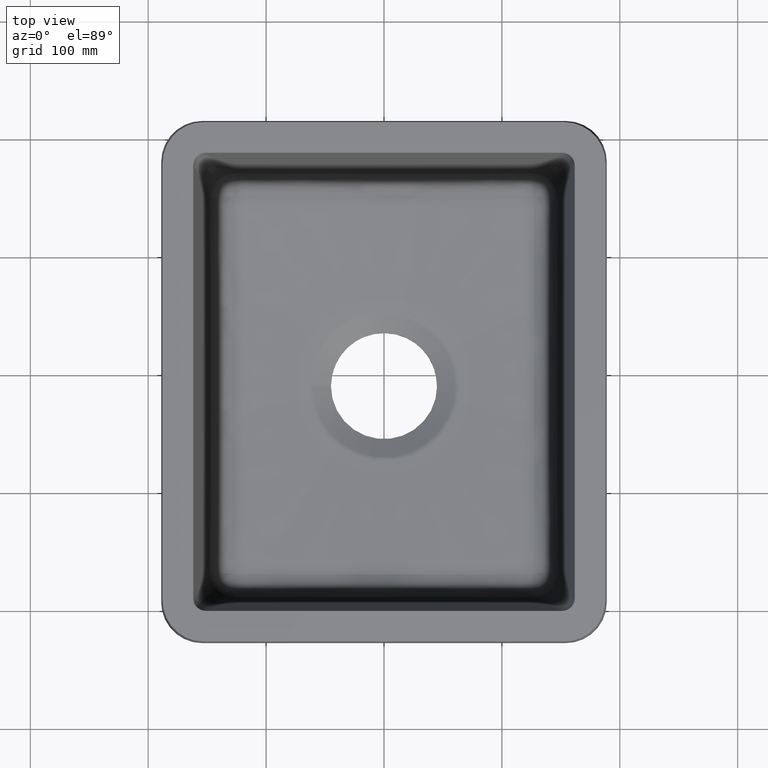
[diagram: clean part render]
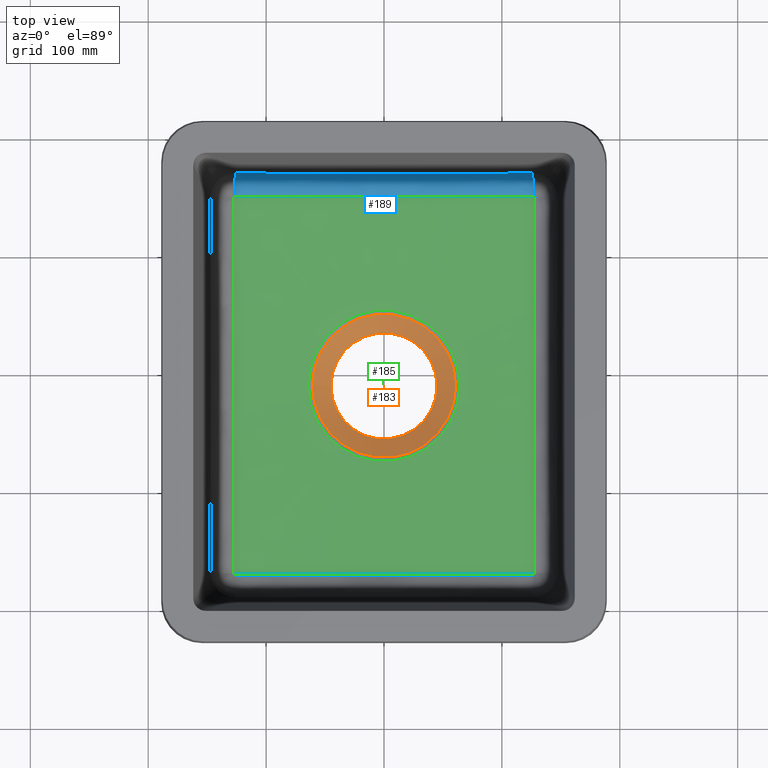
[diagram: same view with three faces highlighted in distinct colors, each labeled with its STEP entity id]
A machine part, top view with three faces highlighted in distinct colors.
Their STEP definitions:

[orange] entity #183 — the highlighted conical surface has half-angle 60 deg.
#114=CONICAL_SURFACE('',#1352,45.,59.9999999999999);
#162=FACE_BOUND('',#394,.T.);
#163=FACE_BOUND('',#395,.T.);
#183=ADVANCED_FACE('',(#162,#163),#114,.F.);
#394=EDGE_LOOP('',(#563));
#395=EDGE_LOOP('',(#564));
#479=CIRCLE('',#1349,45.);
#480=CIRCLE('',#1351,60.7210063281648);
#563=ORIENTED_EDGE('',*,*,#1069,.F.);
#564=ORIENTED_EDGE('',*,*,#1068,.T.);
#937=VERTEX_POINT('',#2092);
#938=VERTEX_POINT('',#2095);
#1068=EDGE_CURVE('',#937,#937,#479,.T.);
#1069=EDGE_CURVE('',#938,#938,#480,.T.);
#1349=AXIS2_PLACEMENT_3D('',#2091,#1430,#1431);
#1351=AXIS2_PLACEMENT_3D('',#2094,#1434,#1435);
#1352=AXIS2_PLACEMENT_3D('',#2096,#1436,#1437);
#1430=DIRECTION('',(0.,0.,-1.));
#1431=DIRECTION('',(1.,0.,0.));
#1434=DIRECTION('',(0.,0.,-1.));
#1435=DIRECTION('',(-1.,0.,0.));
#1436=DIRECTION('',(0.,0.,1.));
#1437=DIRECTION('',(-1.,0.,-3.12377963504605E-17));
#2091=CARTESIAN_POINT('',(0.,-209.,-203.));
#2092=CARTESIAN_POINT('',(45.,-209.,-203.));
#2094=CARTESIAN_POINT('',(0.,-209.,-193.923472764502));
#2095=CARTESIAN_POINT('',(-60.7210063281648,-209.,-193.923472764502));
#2096=CARTESIAN_POINT('',(0.,-209.,-203.));

[blue] entity #189 — the highlighted face is a freeform B-spline surface patch.
#189=ADVANCED_FACE('',(#315),#269,.T.);
#269=(
BOUNDED_SURFACE()
B_SPLINE_SURFACE(3,2,((#2455,#2456,#2457),(#2458,#2459,#2460),(#2461,#2462,
#2463),(#2464,#2465,#2466),(#2467,#2468,#2469),(#2470,#2471,#2472)),
 .UNSPECIFIED.,.F.,.F.,.F.)
B_SPLINE_SURFACE_WITH_KNOTS((4,2,4),(3,3),(0.,0.5,1.),(0.,1.),
 .UNSPECIFIED.)
GEOMETRIC_REPRESENTATION_ITEM()
RATIONAL_B_SPLINE_SURFACE(((1.,0.755461974470587,1.),(1.,0.757763096827722,
1.),(1.,0.760406727337472,1.),(1.,0.760405203498363,1.),(1.,0.757761985915003,
1.),(1.,0.755461974461319,1.)))
REPRESENTATION_ITEM('')
SURFACE()
);
#315=FACE_OUTER_BOUND('',#403,.T.);
#403=EDGE_LOOP('',(#588,#589,#590,#591));
#485=CIRCLE('',#1359,21.);
#486=CIRCLE('',#1360,21.);
#588=ORIENTED_EDGE('',*,*,#1084,.T.);
#589=ORIENTED_EDGE('',*,*,#1075,.T.);
#590=ORIENTED_EDGE('',*,*,#1086,.F.);
#591=ORIENTED_EDGE('',*,*,#1087,.F.);
#944=VERTEX_POINT('',#2142);
#945=VERTEX_POINT('',#2149);
#951=VERTEX_POINT('',#2364);
#952=VERTEX_POINT('',#2406);
#1075=EDGE_CURVE('',#945,#944,#1253,.T.);
#1084=EDGE_CURVE('',#951,#945,#485,.T.);
#1086=EDGE_CURVE('',#952,#944,#486,.T.);
#1087=EDGE_CURVE('',#951,#952,#1257,.T.);
#1253=B_SPLINE_CURVE_WITH_KNOTS('',3,(#2143,#2144,#2145,#2146,#2147,#2148),
 .UNSPECIFIED.,.F.,.F.,(4,2,4),(0.,0.5,1.),.UNSPECIFIED.);
#1257=B_SPLINE_CURVE_WITH_KNOTS('',3,(#2407,#2408,#2409,#2410,#2411,#2412,
#2413,#2414,#2415,#2416,#2417,#2418,#2419,#2420,#2421,#2422,#2423,#2424,
#2425,#2426,#2427,#2428,#2429,#2430,#2431,#2432,#2433,#2434,#2435,#2436,
#2437,#2438,#2439,#2440,#2441,#2442,#2443,#2444,#2445,#2446,#2447,#2448,
#2449,#2450,#2451,#2452,#2453,#2454),.UNSPECIFIED.,.F.,.F.,(4,1,1,1,2,2,
1,1,1,2,2,1,1,1,2,2,2,1,1,1,2,2,1,1,1,2,2,1,1,1,2,2,4),(0.,0.0624999999999987,
0.0937499999999981,0.109374999999998,0.117187499999998,0.124999999999998,
0.187499999999998,0.218749999999998,0.234374999999998,0.242187499999997,
0.249999999999997,0.312499999999998,0.343749999999998,0.359374999999998,
0.367187499999998,0.374999999999998,0.499999999999999,0.562499999999999,
0.593749999999999,0.609374999999999,0.617187499999999,0.624999999999999,
0.6875,0.71875,0.734375,0.7421875,0.75,0.8125,0.84375,0.859375,0.8671875,
0.875,1.),.UNSPECIFIED.);
#1359=AXIS2_PLACEMENT_3D('',#2363,#1450,#1451);
#1360=AXIS2_PLACEMENT_3D('',#2405,#1452,#1453);
#1450=DIRECTION('',(-0.999044054790385,0.00380998873440324,0.0435483705071604));
#1451=DIRECTION('',(0.043548686584983,0.,0.99905130593815));
#1452=DIRECTION('',(-0.999044054788822,-0.00380998873751732,-0.0435483705427545));
#1453=DIRECTION('',(-0.0435486866205776,0.,0.999051305936598));
#2142=CARTESIAN_POINT('',(126.703967676714,-48.8155332062349,-183.076196779708));
#2143=CARTESIAN_POINT('',(-126.703967626936,-48.8155524949828,-183.076197839738));
#2144=CARTESIAN_POINT('',(-84.6086065737248,-48.8285094112737,-184.903042756999));
#2145=CARTESIAN_POINT('',(-42.3010039788508,-48.7687889401788,-186.153790256134));
#2146=CARTESIAN_POINT('',(42.3414664064101,-48.7688214625837,-186.153045209774));
#2147=CARTESIAN_POINT('',(84.6185142206459,-48.8285063611521,-184.902612788656));
#2148=CARTESIAN_POINT('',(126.70396779616,-48.8155524949307,-183.076197832394));
#2149=CARTESIAN_POINT('',(-126.70396750749,-48.8155332062869,-183.076196787052));
#2363=CARTESIAN_POINT('',(-125.795187940142,-49.9644311285142,-162.127350678909));
#2364=CARTESIAN_POINT('',(-125.795187940139,-29.0443424685806,-163.95762127653));
#2405=CARTESIAN_POINT('',(125.795188108619,-49.9644311278717,-162.127350671565));
#2406=CARTESIAN_POINT('',(125.795188108615,-29.0443424679381,-163.957621269186));
#2407=CARTESIAN_POINT('',(-125.795187940142,-29.0443424685876,-163.95762127661));
#2408=CARTESIAN_POINT('',(-120.333352303717,-29.0651719126388,-164.195702911553));
#2409=CARTESIAN_POINT('',(-112.305850413382,-29.0944844592805,-164.530746852795));
#2410=CARTESIAN_POINT('',(-103.229621778855,-29.1253020963511,-164.882994056359));
#2411=CARTESIAN_POINT('',(-98.7638050209733,-29.1398658313835,-165.049458309503));
#2412=CARTESIAN_POINT('',(-96.8653758874632,-29.1459263427897,-165.118730271857));
#2413=CARTESIAN_POINT('',(-95.6031992060462,-29.1499264416556,-165.16445161111));
#2414=CARTESIAN_POINT('',(-95.0235243524562,-29.1517512076871,-165.185308782291));
#2415=CARTESIAN_POINT('',(-88.9274849044721,-29.1707859352299,-165.402876713675));
#2416=CARTESIAN_POINT('',(-80.9315379331837,-29.1941079826564,-165.669448935567));
#2417=CARTESIAN_POINT('',(-71.8341179788888,-29.2177162567172,-165.939292742859));
#2418=CARTESIAN_POINT('',(-67.3432042131268,-29.22862019843,-166.063925366943));
#2419=CARTESIAN_POINT('',(-65.4309117873828,-29.2331004173103,-166.115134503072));
#2420=CARTESIAN_POINT('',(-64.1588023707623,-29.2360443634535,-166.148783961465));
#2421=CARTESIAN_POINT('',(-63.5645440508228,-29.2374036911243,-166.16432114784));
#2422=CARTESIAN_POINT('',(-57.5010388880132,-29.2510865603853,-166.320717059145));
#2423=CARTESIAN_POINT('',(-49.5265782894504,-29.2670925374037,-166.503666213622));
#2424=CARTESIAN_POINT('',(-40.4159135901978,-29.2818499420985,-166.672344121136));
#2425=CARTESIAN_POINT('',(-35.9087994070059,-29.2882495856559,-166.745492381716));
#2426=CARTESIAN_POINT('',(-33.9875115070167,-29.2907824917254,-166.774443630569));
#2427=CARTESIAN_POINT('',(-32.7089490101874,-29.2924244739247,-166.793211572987));
#2428=CARTESIAN_POINT('',(-32.1049006288235,-29.2931807179177,-166.801855481381));
#2429=CARTESIAN_POINT('',(-20.6967112965835,-29.3070494103216,-166.960375360928));
#2430=CARTESIAN_POINT('',(-10.2113721069954,-29.3135719936306,-167.034928829299));
#2431=CARTESIAN_POINT('',(5.13575543360382,-29.3135604155273,-167.034796490973));
#2432=CARTESIAN_POINT('',(12.9036269372322,-29.3111075881608,-167.006760545884));
#2433=CARTESIAN_POINT('',(22.1311822247906,-29.3039636391821,-166.925104835409));
#2434=CARTESIAN_POINT('',(26.7862195019013,-29.2993210854299,-166.872040203204));
#2435=CARTESIAN_POINT('',(28.7900768278054,-29.2971020096941,-166.84667605148));
#2436=CARTESIAN_POINT('',(30.1279464561858,-29.2955716459053,-166.829183913332));
#2437=CARTESIAN_POINT('',(30.8320292736775,-29.2947394108994,-166.819671423686));
#2438=CARTESIAN_POINT('',(36.5626346216748,-29.287768022328,-166.739988087692));
#2439=CARTESIAN_POINT('',(44.3136693873221,-29.276235870181,-166.608174985488));
#2440=CARTESIAN_POINT('',(53.5494416417996,-29.2588669997521,-166.409647888046));
#2441=CARTESIAN_POINT('',(58.215552359344,-29.2492038913066,-166.299198053106));
#2442=CARTESIAN_POINT('',(60.2256479362142,-29.2448528434233,-166.249465348228));
#2443=CARTESIAN_POINT('',(61.5680080631898,-29.2419055413472,-166.215777531347));
#2444=CARTESIAN_POINT('',(62.2808691291871,-29.2403170929128,-166.197621482661));
#2445=CARTESIAN_POINT('',(67.9773622003315,-29.2274582630616,-166.05064438491));
#2446=CARTESIAN_POINT('',(75.7052682216551,-29.2082552148976,-165.831152540023));
#2447=CARTESIAN_POINT('',(84.9531769511788,-29.1822502607387,-165.533914553856));
#2448=CARTESIAN_POINT('',(89.6351359087689,-29.1683474341674,-165.375004518989));
#2449=CARTESIAN_POINT('',(91.6541193033421,-29.1621961478885,-165.304694995092));
#2450=CARTESIAN_POINT('',(93.0028703565256,-29.1580524165839,-165.257331929553));
#2451=CARTESIAN_POINT('',(93.7284779897575,-29.1558034263872,-165.231625853976));
#2452=CARTESIAN_POINT('',(104.392350277369,-29.1224995460281,-164.850960759586));
#2453=CARTESIAN_POINT('',(114.872158115271,-29.085998910476,-164.433756586142));
#2454=CARTESIAN_POINT('',(125.795188108619,-29.0443424679451,-163.957621269266));
#2455=CARTESIAN_POINT('',(-126.703967388043,-48.8155139175911,-183.076195734365));
#2456=CARTESIAN_POINT('',(-126.591353308048,-30.630171073387,-182.083725172682));
#2457=CARTESIAN_POINT('',(-125.795187940142,-29.0443424685876,-163.95762127661));
#2458=CARTESIAN_POINT('',(-84.608606365029,-48.8284710053598,-184.903040387116));
#2459=CARTESIAN_POINT('',(-84.6383583807771,-30.7789017891335,-183.783725030152));
#2460=CARTESIAN_POINT('',(-83.8669016449846,-29.2042416219554,-165.785276962772));
#2461=CARTESIAN_POINT('',(-42.3010038671483,-48.7687507367281,-186.153787584597));
#2462=CARTESIAN_POINT('',(-42.2486474195924,-30.8767921805126,-184.902617324595));
#2463=CARTESIAN_POINT('',(-41.9142743666867,-29.3135968664501,-167.035213126928));
#2464=CARTESIAN_POINT('',(42.3414662946007,-48.7687832590157,-186.153042538411));
#2465=CARTESIAN_POINT('',(42.2891445128003,-30.8767339042059,-184.901951226358));
#2466=CARTESIAN_POINT('',(41.9543668734947,-29.31353168334,-167.034468080569));
#2467=CARTESIAN_POINT('',(84.6185140119563,-48.8284679552268,-184.902610418837));
#2468=CARTESIAN_POINT('',(84.6481772012566,-30.7788669797778,-183.783327160049));
#2469=CARTESIAN_POINT('',(83.8768137591727,-29.2042038208301,-165.784844893932));
#2470=CARTESIAN_POINT('',(126.703967557267,-48.815513917539,-183.076195727021));
#2471=CARTESIAN_POINT('',(126.591353477198,-30.6301710727873,-182.083725165828));
#2472=CARTESIAN_POINT('',(125.795188108619,-29.0443424679451,-163.957621269266));

[green] entity #185 — the highlighted conical surface has half-angle 86 deg.
#115=CONICAL_SURFACE('',#1355,62.3205080756888,86.);
#147=(
BOUNDED_CURVE()
B_SPLINE_CURVE(3,(#2100,#2101,#2102,#2103,#2104,#2105),.UNSPECIFIED.,.F.,
 .F.)
B_SPLINE_CURVE_WITH_KNOTS((4,2,4),(0.,0.5,1.),.UNSPECIFIED.)
CURVE()
GEOMETRIC_REPRESENTATION_ITEM()
RATIONAL_B_SPLINE_CURVE((0.999999999999919,0.99999999999992,0.999999999999921,
0.999999999999921,0.99999999999992,0.999999999999919))
REPRESENTATION_ITEM('')
);
#148=(
BOUNDED_CURVE()
B_SPLINE_CURVE(3,(#2108,#2109,#2110,#2111,#2112,#2113,#2114,#2115,#2116,
#2117),.UNSPECIFIED.,.F.,.F.)
B_SPLINE_CURVE_WITH_KNOTS((4,2,2,2,4),(0.,0.25,0.5,0.75,1.),
 .UNSPECIFIED.)
CURVE()
GEOMETRIC_REPRESENTATION_ITEM()
RATIONAL_B_SPLINE_CURVE((1.,1.,1.,1.,1.,1.,1.,1.,1.,1.))
REPRESENTATION_ITEM('')
);
#149=(
BOUNDED_CURVE()
B_SPLINE_CURVE(3,(#2119,#2120,#2121,#2122,#2123,#2124,#2125,#2126,#2127,
#2128),.UNSPECIFIED.,.F.,.F.)
B_SPLINE_CURVE_WITH_KNOTS((4,2,2,2,4),(0.,0.25,0.5,0.75,1.),
 .UNSPECIFIED.)
CURVE()
GEOMETRIC_REPRESENTATION_ITEM()
RATIONAL_B_SPLINE_CURVE((1.,1.,1.,1.,1.,1.,1.,1.,1.,1.))
REPRESENTATION_ITEM('')
);
#150=(
BOUNDED_CURVE()
B_SPLINE_CURVE(3,(#2130,#2131,#2132,#2133,#2134,#2135,#2136,#2137,#2138,
#2139,#2140,#2141),.UNSPECIFIED.,.F.,.F.)
B_SPLINE_CURVE_WITH_KNOTS((4,2,2,2,2,4),(0.,0.25,0.5,0.625,0.75,1.),
 .UNSPECIFIED.)
CURVE()
GEOMETRIC_REPRESENTATION_ITEM()
RATIONAL_B_SPLINE_CURVE((1.,1.,1.,1.,1.,1.,1.,1.,1.,1.,1.,1.))
REPRESENTATION_ITEM('')
);
#151=(
BOUNDED_CURVE()
B_SPLINE_CURVE(3,(#2150,#2151,#2152,#2153,#2154,#2155,#2156,#2157,#2158,
#2159),.UNSPECIFIED.,.F.,.F.)
B_SPLINE_CURVE_WITH_KNOTS((4,2,2,2,4),(0.,0.25,0.5,0.75,1.),
 .UNSPECIFIED.)
CURVE()
GEOMETRIC_REPRESENTATION_ITEM()
RATIONAL_B_SPLINE_CURVE((1.,1.,1.,1.,1.,1.,1.,1.,1.,1.))
REPRESENTATION_ITEM('')
);
#152=(
BOUNDED_CURVE()
B_SPLINE_CURVE(3,(#2161,#2162,#2163,#2164,#2165,#2166,#2167,#2168,#2169,
#2170),.UNSPECIFIED.,.F.,.F.)
B_SPLINE_CURVE_WITH_KNOTS((4,2,2,2,4),(0.,0.25,0.5,0.75,1.),
 .UNSPECIFIED.)
CURVE()
GEOMETRIC_REPRESENTATION_ITEM()
RATIONAL_B_SPLINE_CURVE((0.999999999996311,0.999999999996332,0.99999999999636,
0.999999999996414,0.999999999996439,0.999999999996439,0.999999999996414,
0.99999999999636,0.999999999996332,0.999999999996311))
REPRESENTATION_ITEM('')
);
#153=(
BOUNDED_CURVE()
B_SPLINE_CURVE(3,(#2172,#2173,#2174,#2175,#2176,#2177,#2178,#2179,#2180,
#2181,#2182,#2183),.UNSPECIFIED.,.F.,.F.)
B_SPLINE_CURVE_WITH_KNOTS((4,2,2,2,2,4),(0.,0.25,0.5,0.625,0.75,1.),
 .UNSPECIFIED.)
CURVE()
GEOMETRIC_REPRESENTATION_ITEM()
RATIONAL_B_SPLINE_CURVE((1.,1.,1.,1.,1.,1.,1.,1.,1.,1.,1.,1.))
REPRESENTATION_ITEM('')
);
#166=FACE_BOUND('',#398,.T.);
#167=FACE_BOUND('',#399,.T.);
#185=ADVANCED_FACE('',(#166,#167),#115,.F.);
#398=EDGE_LOOP('',(#567));
#399=EDGE_LOOP('',(#568,#569,#570,#571,#572,#573,#574,#575));
#481=CIRCLE('',#1353,64.1629545382118);
#567=ORIENTED_EDGE('',*,*,#1070,.T.);
#568=ORIENTED_EDGE('',*,*,#1071,.F.);
#569=ORIENTED_EDGE('',*,*,#1072,.F.);
#570=ORIENTED_EDGE('',*,*,#1073,.F.);
#571=ORIENTED_EDGE('',*,*,#1074,.F.);
#572=ORIENTED_EDGE('',*,*,#1075,.F.);
#573=ORIENTED_EDGE('',*,*,#1076,.F.);
#574=ORIENTED_EDGE('',*,*,#1077,.F.);
#575=ORIENTED_EDGE('',*,*,#1078,.F.);
#939=VERTEX_POINT('',#2098);
#940=VERTEX_POINT('',#2106);
#941=VERTEX_POINT('',#2107);
#942=VERTEX_POINT('',#2118);
#943=VERTEX_POINT('',#2129);
#944=VERTEX_POINT('',#2142);
#945=VERTEX_POINT('',#2149);
#946=VERTEX_POINT('',#2160);
#947=VERTEX_POINT('',#2171);
#1070=EDGE_CURVE('',#939,#939,#481,.T.);
#1071=EDGE_CURVE('',#940,#941,#147,.T.);
#1072=EDGE_CURVE('',#942,#940,#148,.T.);
#1073=EDGE_CURVE('',#943,#942,#149,.T.);
#1074=EDGE_CURVE('',#944,#943,#150,.T.);
#1075=EDGE_CURVE('',#945,#944,#1253,.T.);
#1076=EDGE_CURVE('',#946,#945,#151,.T.);
#1077=EDGE_CURVE('',#947,#946,#152,.T.);
#1078=EDGE_CURVE('',#941,#947,#153,.T.);
#1253=B_SPLINE_CURVE_WITH_KNOTS('',3,(#2143,#2144,#2145,#2146,#2147,#2148),
 .UNSPECIFIED.,.F.,.F.,(4,2,4),(0.,0.5,1.),.UNSPECIFIED.);
#1353=AXIS2_PLACEMENT_3D('',#2097,#1438,#1439);
#1355=AXIS2_PLACEMENT_3D('',#2184,#1442,#1443);
#1438=DIRECTION('',(0.,0.,-1.));
#1439=DIRECTION('',(-1.,0.,0.));
#1442=DIRECTION('',(0.,0.,1.));
#1443=DIRECTION('',(-1.,0.,-3.86487519207004E-18));
#2097=CARTESIAN_POINT('',(0.,-209.,-192.871163592699));
#2098=CARTESIAN_POINT('',(-64.1629545382118,-209.,-192.871163592699));
#2100=CARTESIAN_POINT('',(126.703967388043,-369.184486082414,-183.076195734365));
#2101=CARTESIAN_POINT('',(84.6086063650151,-369.1715290002,-184.903040386811));
#2102=CARTESIAN_POINT('',(42.3010038671483,-369.231249263131,-186.153787584607));
#2103=CARTESIAN_POINT('',(-42.3414662946007,-369.231216741133,-186.153042538401));
#2104=CARTESIAN_POINT('',(-84.6185140119551,-369.171532045172,-184.902610418815));
#2105=CARTESIAN_POINT('',(-126.703967557267,-369.184486082466,-183.076195727021));
#2106=CARTESIAN_POINT('',(126.703967388043,-369.184486082409,-183.076195734365));
#2107=CARTESIAN_POINT('',(-126.703967557267,-369.184486082461,-183.076195727021));
#2108=CARTESIAN_POINT('',(127.449498596173,-368.43812106568,-183.084599488043));
#2109=CARTESIAN_POINT('',(127.449623894954,-368.535363489934,-183.079282583503));
#2110=CARTESIAN_POINT('',(127.428266025886,-368.632889840382,-183.074886137741));
#2111=CARTESIAN_POINT('',(127.351853907229,-368.810266371386,-183.068520999301));
#2112=CARTESIAN_POINT('',(127.295711032138,-368.892621491205,-183.066462752399));
#2113=CARTESIAN_POINT('',(127.158771448564,-369.029827186322,-183.064914572743));
#2114=CARTESIAN_POINT('',(127.076754136359,-369.08610893853,-183.065399451886));
#2115=CARTESIAN_POINT('',(126.898047914273,-369.163346090652,-183.068932584697));
#2116=CARTESIAN_POINT('',(126.800933847891,-369.184515867682,-183.071987609935));
#2117=CARTESIAN_POINT('',(126.703967388043,-369.184486082409,-183.076195734365));
#2118=CARTESIAN_POINT('',(127.449498596173,-368.43812106568,-183.084599488043));
#2119=CARTESIAN_POINT('',(127.449498596391,-49.561878765066,-183.084599478788));
#2120=CARTESIAN_POINT('',(127.415406311265,-76.0098115247745,-184.530688391495));
#2121=CARTESIAN_POINT('',(127.417109990099,-102.494773973307,-185.852690479812));
#2122=CARTESIAN_POINT('',(127.477798579808,-155.653420841765,-187.824032419283));
#2123=CARTESIAN_POINT('',(127.531245177134,-182.356328577732,-188.440858104068));
#2124=CARTESIAN_POINT('',(127.531115716667,-235.758142535176,-188.43919125249));
#2125=CARTESIAN_POINT('',(127.477681222925,-262.423281006196,-187.821665350397));
#2126=CARTESIAN_POINT('',(127.417104856266,-315.535869623514,-185.851075770898));
#2127=CARTESIAN_POINT('',(127.415424686625,-342.004443071966,-184.52990899482));
#2128=CARTESIAN_POINT('',(127.449498596173,-368.43812106568,-183.084599488043));
#2129=CARTESIAN_POINT('',(127.449498596391,-49.561878765066,-183.084599478788));
#2130=CARTESIAN_POINT('',(126.703967557267,-48.815513917539,-183.076195727021));
#2131=CARTESIAN_POINT('',(126.801495029359,-48.8154839484248,-183.071963255297));
#2132=CARTESIAN_POINT('',(126.899142158549,-48.8370537047917,-183.06890695973));
#2133=CARTESIAN_POINT('',(127.076620939909,-48.9139069135208,-183.065406091644));
#2134=CARTESIAN_POINT('',(127.158922022227,-48.9702893205496,-183.064914401053));
#2135=CARTESIAN_POINT('',(127.261607790575,-49.0732260780724,-183.066078127609));
#2136=CARTESIAN_POINT('',(127.293053274725,-49.1112376158499,-183.066788410479));
#2137=CARTESIAN_POINT('',(127.347747809569,-49.1918062347472,-183.068812411558));
#2138=CARTESIAN_POINT('',(127.371068002559,-49.2342502016487,-183.07011687498));
#2139=CARTESIAN_POINT('',(127.428666588853,-49.3682117330838,-183.074928879847));
#2140=CARTESIAN_POINT('',(127.449623272408,-49.4651112157955,-183.079308539366));
#2141=CARTESIAN_POINT('',(127.449498596391,-49.561878765066,-183.084599478788));
#2142=CARTESIAN_POINT('',(126.703967676714,-48.8155332062349,-183.076196779708));
#2143=CARTESIAN_POINT('',(-126.703967626936,-48.8155524949828,-183.076197839738));
#2144=CARTESIAN_POINT('',(-84.6086065737248,-48.8285094112737,-184.903042756999));
#2145=CARTESIAN_POINT('',(-42.3010039788508,-48.7687889401788,-186.153790256134));
#2146=CARTESIAN_POINT('',(42.3414664064101,-48.7688214625837,-186.153045209774));
#2147=CARTESIAN_POINT('',(84.6185142206459,-48.8285063611521,-184.902612788656));
#2148=CARTESIAN_POINT('',(126.70396779616,-48.8155524949307,-183.076197832394));
#2149=CARTESIAN_POINT('',(-126.70396750749,-48.8155332062869,-183.076196787052));
#2150=CARTESIAN_POINT('',(-127.449498596173,-49.5618789343203,-183.084599488042));
#2151=CARTESIAN_POINT('',(-127.449623894956,-49.4646365100654,-183.079282583503));
#2152=CARTESIAN_POINT('',(-127.428266025888,-49.3671101596184,-183.074886137741));
#2153=CARTESIAN_POINT('',(-127.351853907227,-49.1897336286135,-183.068520999301));
#2154=CARTESIAN_POINT('',(-127.295711032136,-49.1073785087932,-183.066462752399));
#2155=CARTESIAN_POINT('',(-127.158771448567,-48.9701728136806,-183.064914572743));
#2156=CARTESIAN_POINT('',(-127.076754136354,-48.9138910614766,-183.065399451887));
#2157=CARTESIAN_POINT('',(-126.898047914278,-48.8366539093418,-183.068932584697));
#2158=CARTESIAN_POINT('',(-126.800933847887,-48.8154841323343,-183.071987609936));
#2159=CARTESIAN_POINT('',(-126.703967388043,-48.815513917591,-183.076195734365));
#2160=CARTESIAN_POINT('',(-127.449498596173,-49.5618789343203,-183.084599488043));
#2161=CARTESIAN_POINT('',(-127.449498596597,-368.438121234932,-183.084599478779));
#2162=CARTESIAN_POINT('',(-127.415406311104,-341.990188475226,-184.530688391501));
#2163=CARTESIAN_POINT('',(-127.417109990303,-315.505226026692,-185.852690479801));
#2164=CARTESIAN_POINT('',(-127.477798580011,-262.346579158235,-187.82403241927));
#2165=CARTESIAN_POINT('',(-127.531245177336,-235.643671422267,-188.440858104054));
#2166=CARTESIAN_POINT('',(-127.531115716869,-182.241857464825,-188.439191252476));
#2167=CARTESIAN_POINT('',(-127.47768122313,-155.576718994535,-187.821665350411));
#2168=CARTESIAN_POINT('',(-127.417104856468,-102.464130375755,-185.851075770859));
#2169=CARTESIAN_POINT('',(-127.41542468574,-75.9955569285797,-184.529908994887));
#2170=CARTESIAN_POINT('',(-127.449498596379,-49.5618789343218,-183.084599488034));
#2171=CARTESIAN_POINT('',(-127.449498596391,-368.438121234934,-183.084599478788));
#2172=CARTESIAN_POINT('',(-126.703967557267,-369.184486082461,-183.076195727021));
#2173=CARTESIAN_POINT('',(-126.801495029358,-369.184516051579,-183.071963255297));
#2174=CARTESIAN_POINT('',(-126.899142158551,-369.162946295208,-183.06890695973));
#2175=CARTESIAN_POINT('',(-127.076620939908,-369.08609308648,-183.065406091645));
#2176=CARTESIAN_POINT('',(-127.158922022227,-369.029710679452,-183.064914401053));
#2177=CARTESIAN_POINT('',(-127.261607790575,-368.926773921927,-183.066078127609));
#2178=CARTESIAN_POINT('',(-127.293053274723,-368.888762384157,-183.066788410479));
#2179=CARTESIAN_POINT('',(-127.347747809571,-368.808193765246,-183.068812411559));
#2180=CARTESIAN_POINT('',(-127.371068002559,-368.765749798351,-183.07011687498));
#2181=CARTESIAN_POINT('',(-127.428666588855,-368.631788266918,-183.074928879847));
#2182=CARTESIAN_POINT('',(-127.449623272413,-368.534888784204,-183.079308539366));
#2183=CARTESIAN_POINT('',(-127.449498596391,-368.438121234934,-183.084599478788));
#2184=CARTESIAN_POINT('',(0.,-209.,-193.));